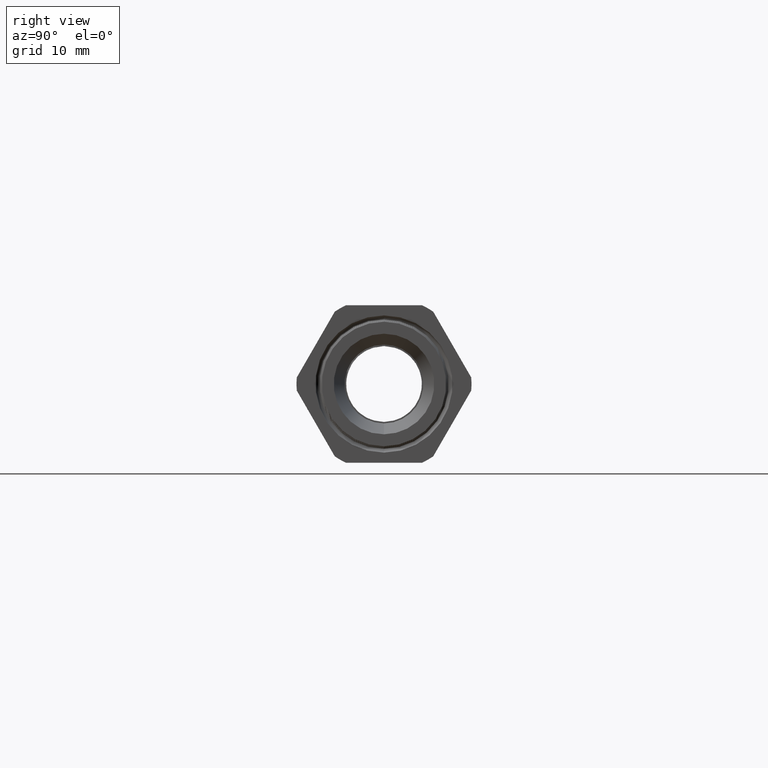
[diagram: clean part render]
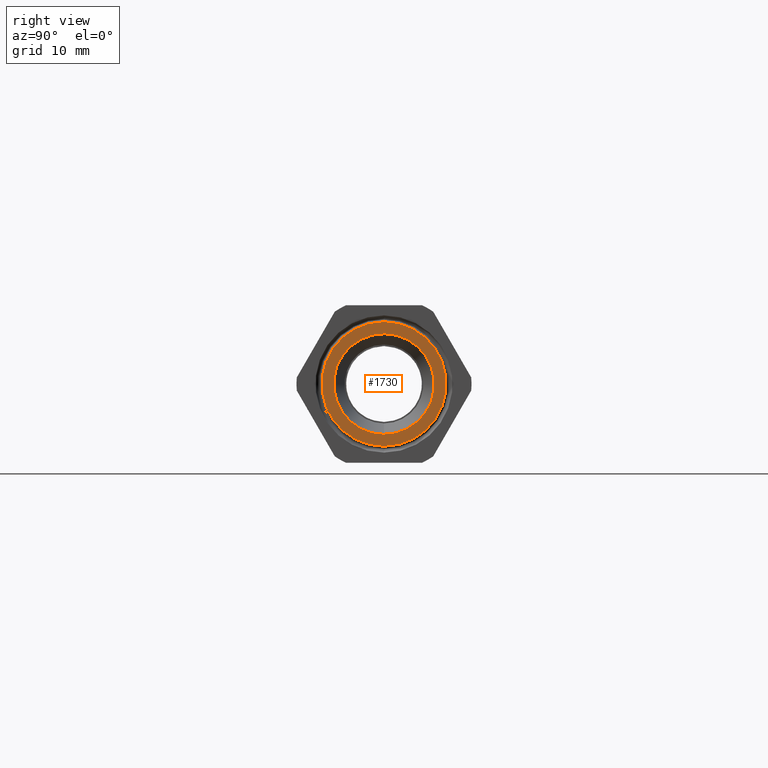
[diagram: same view with one face highlighted and labeled with its STEP entity id]
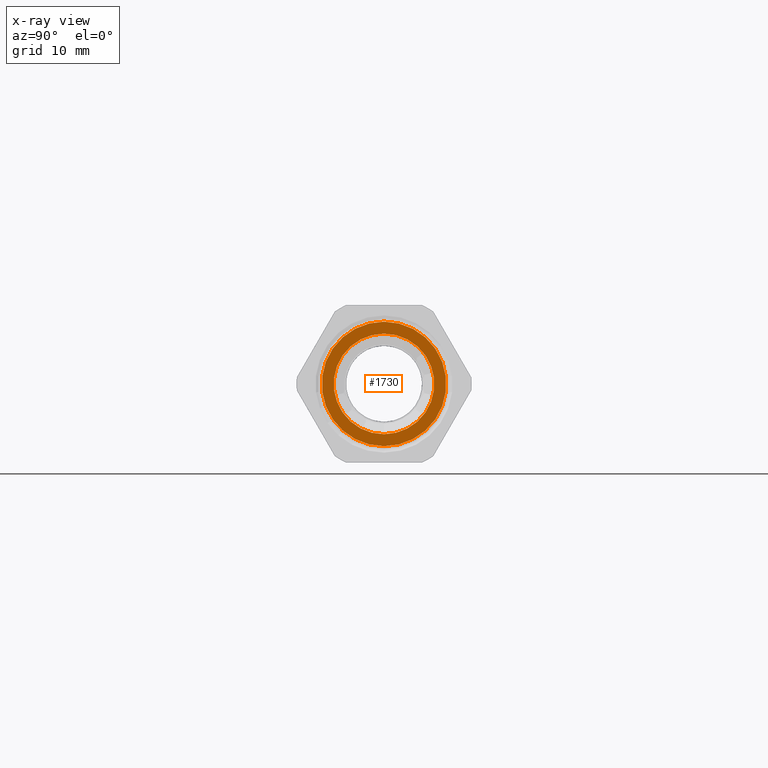
[diagram: x-ray of the same camera — body ghosted, the highlighted face saturated]
A machine part, right view. The second image highlights one B-rep face of the part: STEP entity #1730.
The next image is the same camera in x-ray: the body ghosted, the highlighted face saturated — about 0% of this face is hidden behind the body in this view.
In plain terms, the highlighted planar face has unit normal (1, 0, 0).
Its self-contained STEP definition (entity closure, byte-faithful):
#780 = EDGE_CURVE ( 'NONE', #789, #788, #4314, .T. ) ;
#788 = VERTEX_POINT ( 'NONE', #4299 ) ;
#789 = VERTEX_POINT ( 'NONE', #4298 ) ;
#853 = EDGE_CURVE ( 'NONE', #7302, #858, #4445, .T. ) ;
#858 = VERTEX_POINT ( 'NONE', #4440 ) ;
#1510 = EDGE_CURVE ( 'NONE', #858, #7302, #4706, .T. ) ;
#1511 = ORIENTED_EDGE ( 'NONE', *, *, #1510, .F. ) ;
#1512 = EDGE_LOOP ( 'NONE', ( #1511, #2903 ) ) ;
#1513 = ORIENTED_EDGE ( 'NONE', *, *, #780, .T. ) ;
#1730 = ADVANCED_FACE ( 'NONE', ( #4707, #4701 ), #4700, .T. ) ;
#1731 = EDGE_LOOP ( 'NONE', ( #1733, #1513 ) ) ;
#1733 = ORIENTED_EDGE ( 'NONE', *, *, #10757, .T. ) ;
#2903 = ORIENTED_EDGE ( 'NONE', *, *, #853, .F. ) ;
#4298 = CARTESIAN_POINT ( 'NONE',  ( 0.2799999999999999700, 4.546615525529959500E-017, -0.3712264145277240400 ) ) ;
#4299 = CARTESIAN_POINT ( 'NONE',  ( 0.2799999999999999700, 0.0000000000000000000, 0.3712264145277240400 ) ) ;
#4310 = DIRECTION ( 'NONE',  ( 0.0000000000000000000, 0.0000000000000000000, -1.000000000000000000 ) ) ;
#4311 = DIRECTION ( 'NONE',  ( 1.000000000000000000, 0.0000000000000000000, 0.0000000000000000000 ) ) ;
#4312 = CARTESIAN_POINT ( 'NONE',  ( 0.2799999999999999700, 0.0000000000000000000, 0.0000000000000000000 ) ) ;
#4313 = AXIS2_PLACEMENT_3D ( 'NONE', #4312, #4311, #4310 ) ;
#4314 = CIRCLE ( 'NONE', #4313, 0.3712264145277240400 ) ;
#4440 = CARTESIAN_POINT ( 'NONE',  ( 0.2800000000000000300, 0.0000000000000000000, -0.3000000000000000400 ) ) ;
#4441 = DIRECTION ( 'NONE',  ( 0.0000000000000000000, 0.0000000000000000000, -1.000000000000000000 ) ) ;
#4442 = DIRECTION ( 'NONE',  ( 1.000000000000000000, 0.0000000000000000000, 0.0000000000000000000 ) ) ;
#4443 = CARTESIAN_POINT ( 'NONE',  ( 0.2800000000000000300, 0.0000000000000000000, 0.0000000000000000000 ) ) ;
#4444 = AXIS2_PLACEMENT_3D ( 'NONE', #4443, #4442, #4441 ) ;
#4445 = CIRCLE ( 'NONE', #4444, 0.3000000000000000400 ) ;
#4696 = DIRECTION ( 'NONE',  ( 0.0000000000000000000, 0.0000000000000000000, -1.000000000000000000 ) ) ;
#4697 = DIRECTION ( 'NONE',  ( 1.000000000000000000, 0.0000000000000000000, 0.0000000000000000000 ) ) ;
#4698 = CARTESIAN_POINT ( 'NONE',  ( 0.2799999999999999700, 0.3000000000000000400, 0.0000000000000000000 ) ) ;
#4699 = AXIS2_PLACEMENT_3D ( 'NONE', #4698, #4697, #4696 ) ;
#4700 = PLANE ( 'NONE',  #4699 ) ;
#4701 = FACE_BOUND ( 'NONE', #1512, .T. ) ;
#4702 = DIRECTION ( 'NONE',  ( 0.0000000000000000000, 0.0000000000000000000, -1.000000000000000000 ) ) ;
#4703 = DIRECTION ( 'NONE',  ( 1.000000000000000000, 0.0000000000000000000, 0.0000000000000000000 ) ) ;
#4704 = CARTESIAN_POINT ( 'NONE',  ( 0.2800000000000000300, 0.0000000000000000000, 0.0000000000000000000 ) ) ;
#4705 = AXIS2_PLACEMENT_3D ( 'NONE', #4704, #4703, #4702 ) ;
#4706 = CIRCLE ( 'NONE', #4705, 0.3000000000000000400 ) ;
#4707 = FACE_OUTER_BOUND ( 'NONE', #1731, .T. ) ;
#7302 = VERTEX_POINT ( 'NONE', #11819 ) ;
#10757 = EDGE_CURVE ( 'NONE', #788, #789, #12621, .T. ) ;
#11819 = CARTESIAN_POINT ( 'NONE',  ( 0.2800000000000000300, 3.673940397442060700E-017, 0.3000000000000000400 ) ) ;
#12617 = DIRECTION ( 'NONE',  ( 0.0000000000000000000, 0.0000000000000000000, -1.000000000000000000 ) ) ;
#12618 = DIRECTION ( 'NONE',  ( 1.000000000000000000, 0.0000000000000000000, 0.0000000000000000000 ) ) ;
#12619 = CARTESIAN_POINT ( 'NONE',  ( 0.2799999999999999700, 0.0000000000000000000, 0.0000000000000000000 ) ) ;
#12620 = AXIS2_PLACEMENT_3D ( 'NONE', #12619, #12618, #12617 ) ;
#12621 = CIRCLE ( 'NONE', #12620, 0.3712264145277240400 ) ;